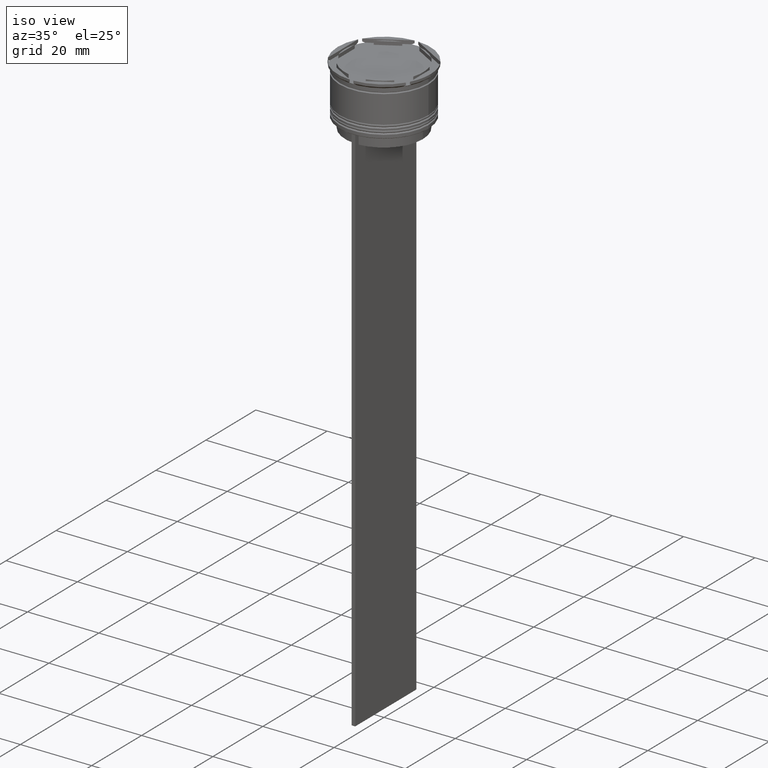
[diagram: clean part render]
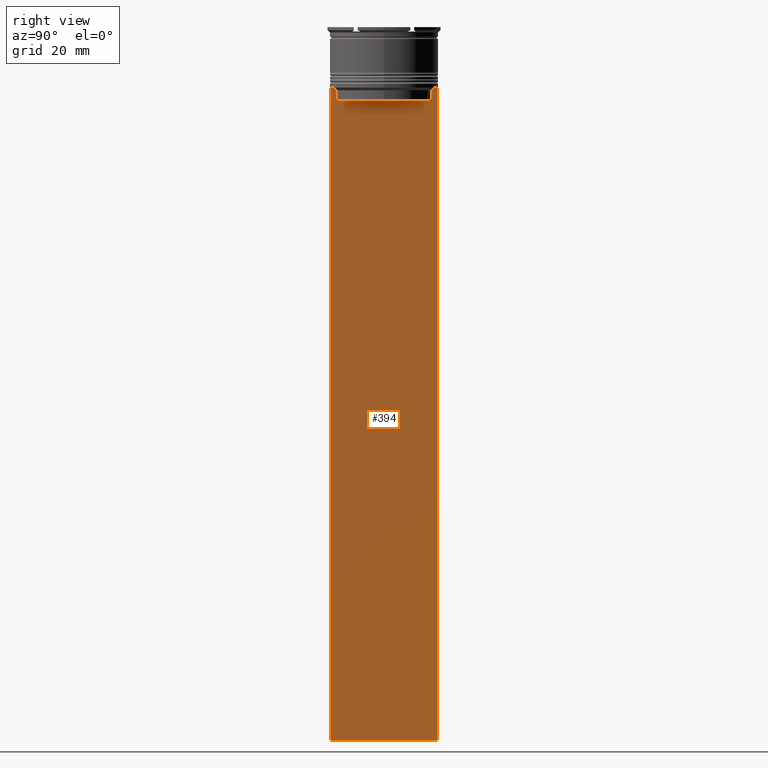
[diagram: tour spotlight — one face highlighted and labeled with its STEP entity id]
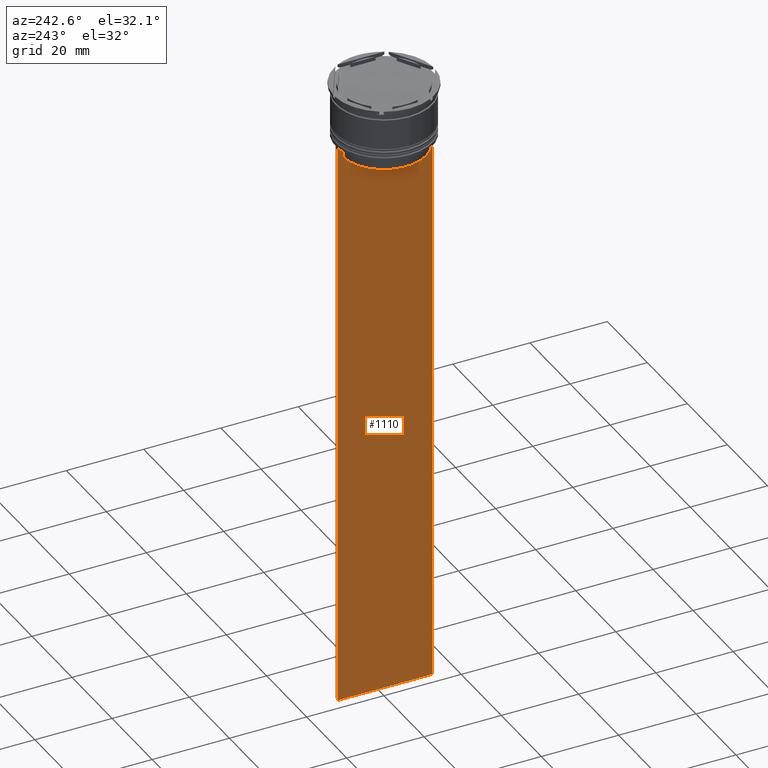
[diagram: tour spotlight — one face highlighted and labeled with its STEP entity id]
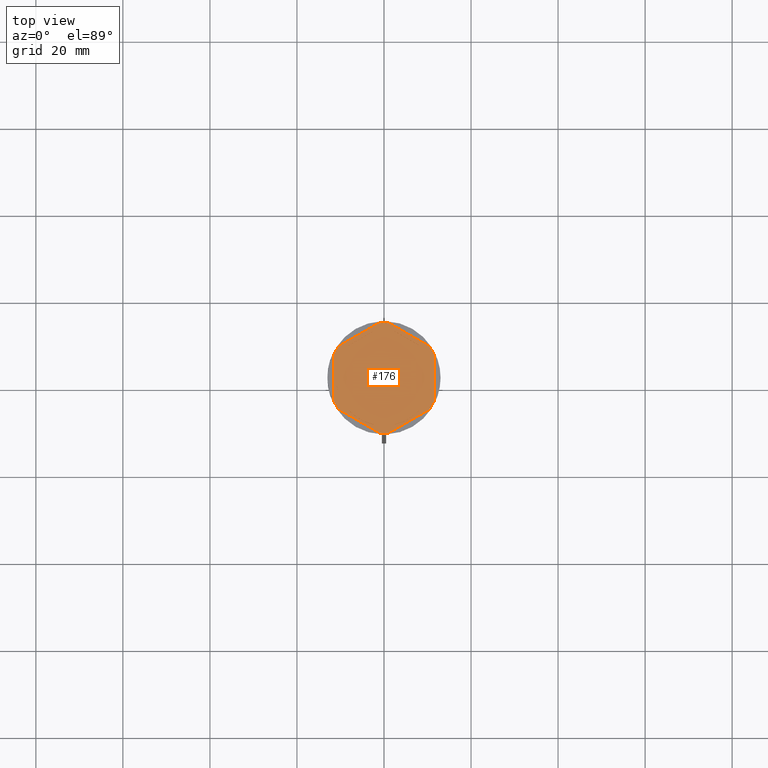
[diagram: tour spotlight — one face highlighted and labeled with its STEP entity id]
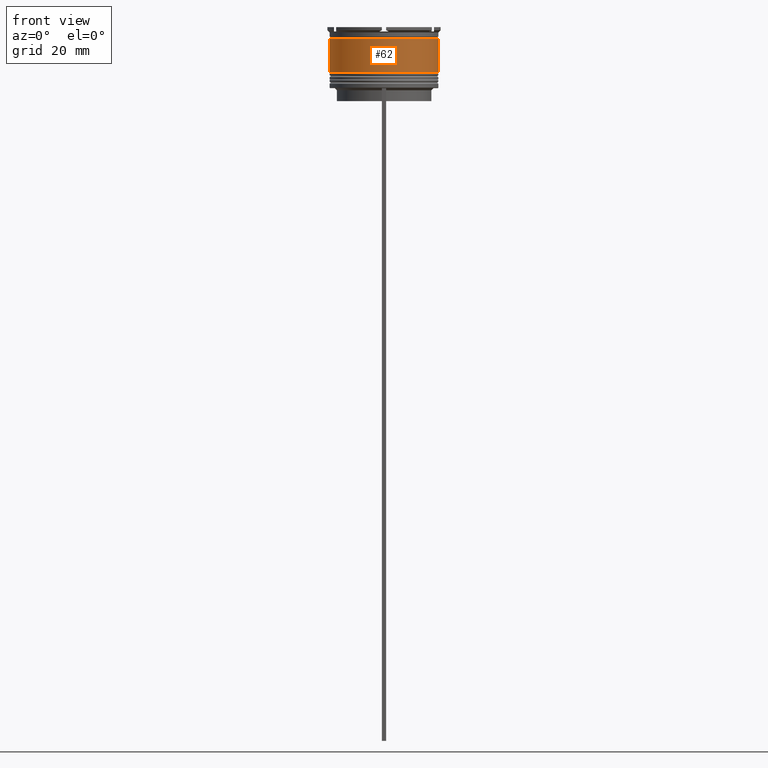
[diagram: tour spotlight — one face highlighted and labeled with its STEP entity id]
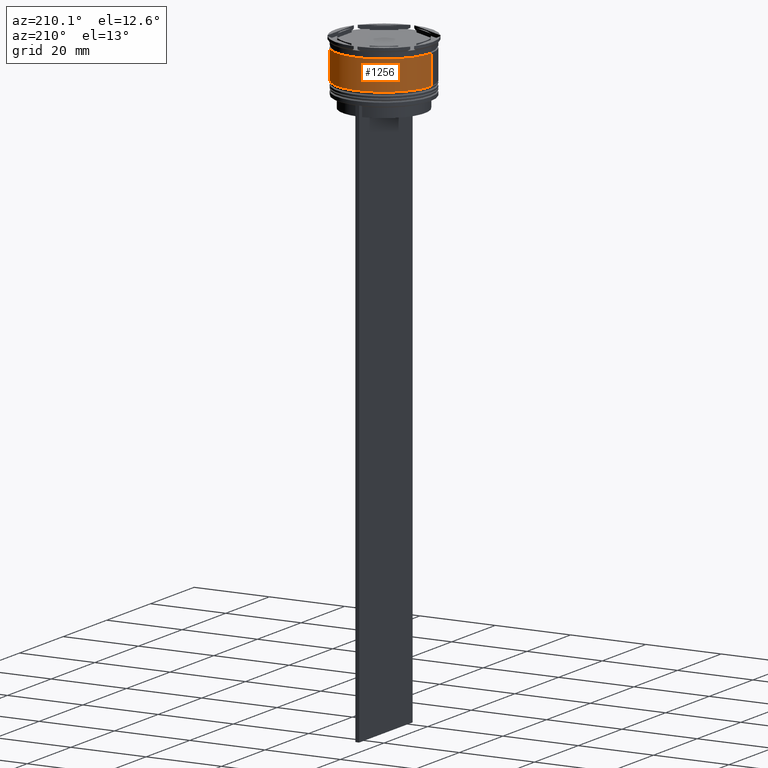
[diagram: tour spotlight — one face highlighted and labeled with its STEP entity id]
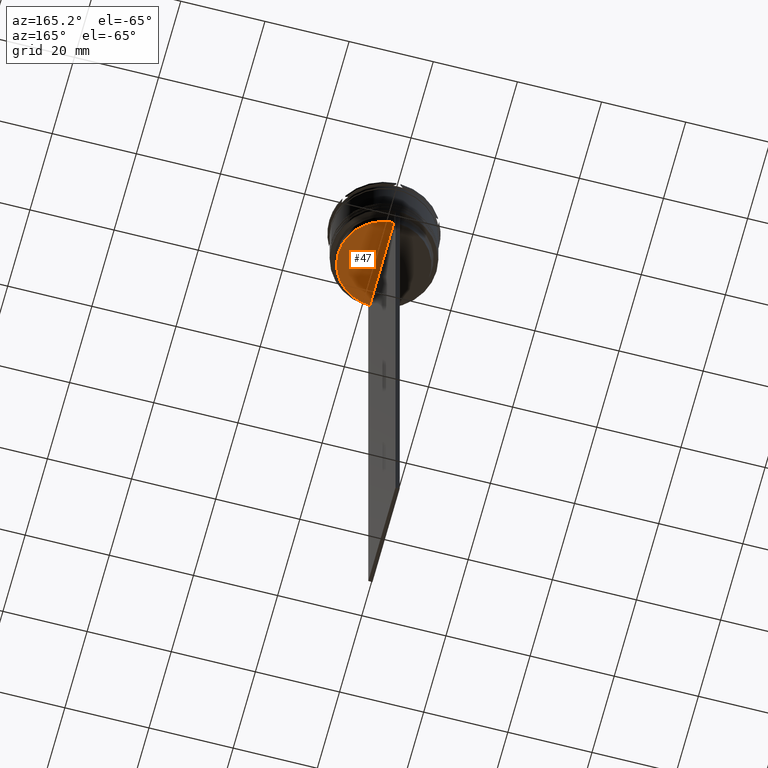
[diagram: tour spotlight — one face highlighted and labeled with its STEP entity id]
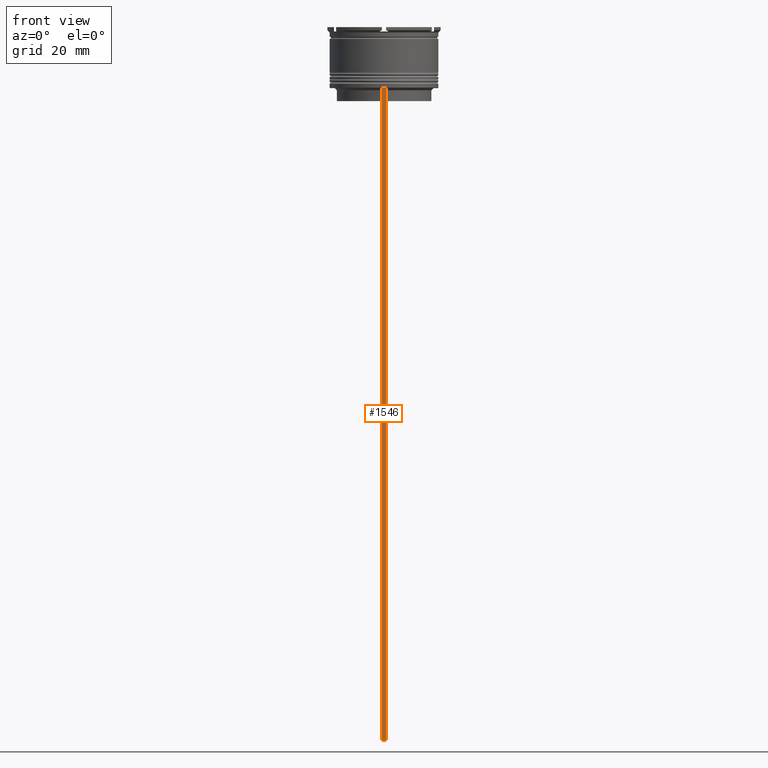
[diagram: tour spotlight — one face highlighted and labeled with its STEP entity id]
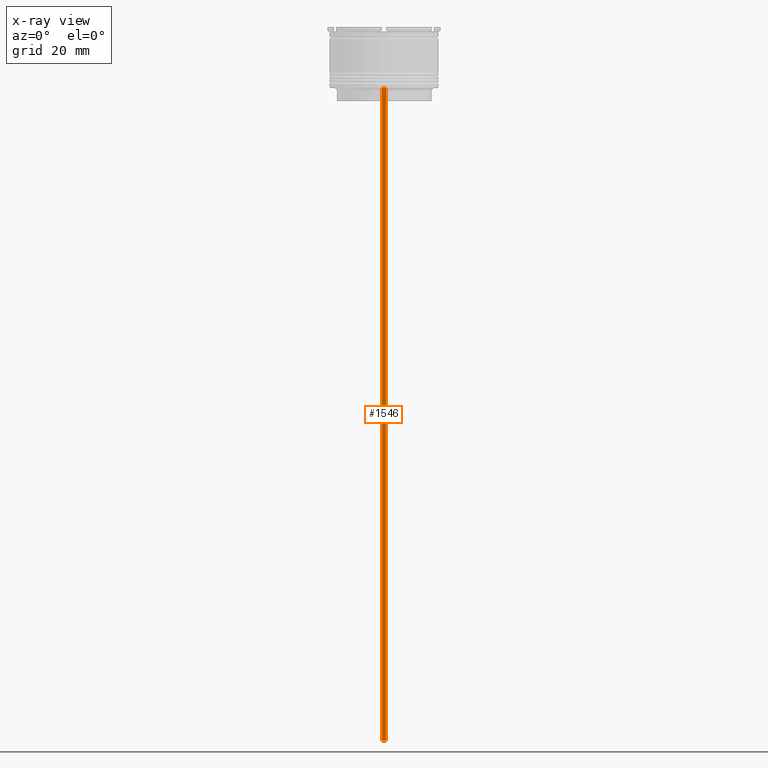
[diagram: x-ray of the same camera — body ghosted, this tour face saturated]
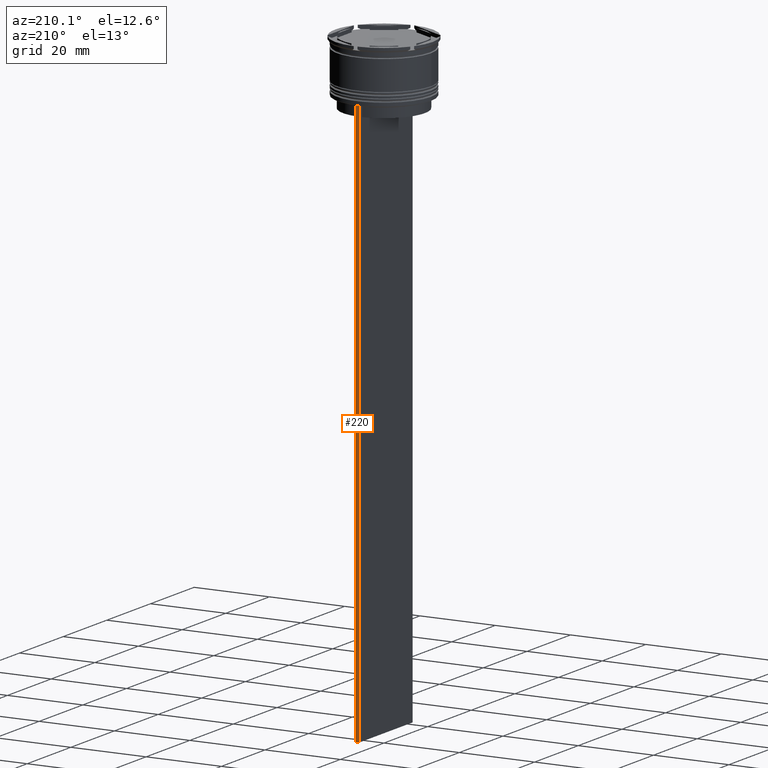
[diagram: tour spotlight — one face highlighted and labeled with its STEP entity id]
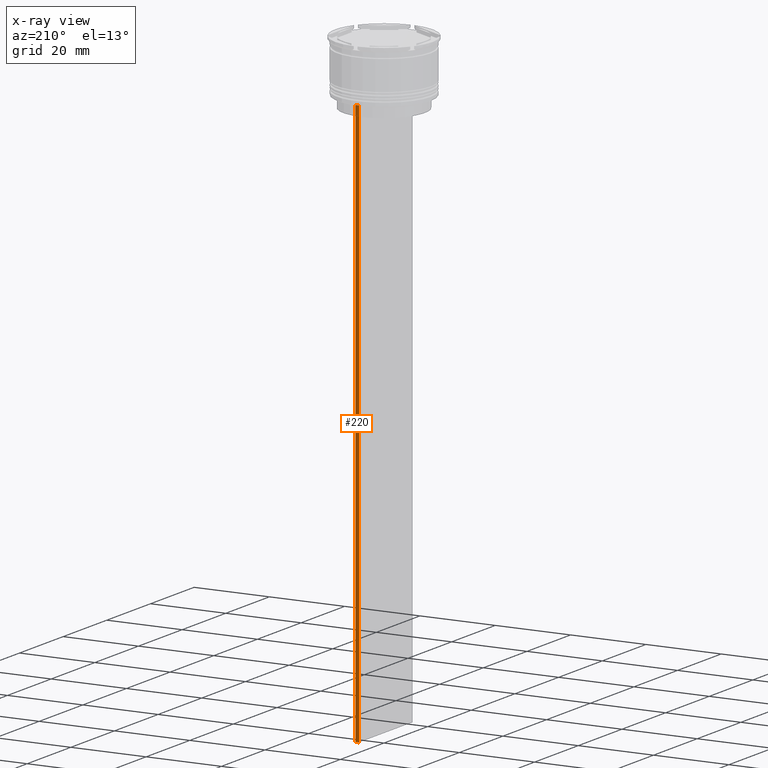
[diagram: x-ray of the same camera — body ghosted, this tour face saturated]
A machine part: a face-by-face anatomy tour. The part has 97 B-rep faces; the first image is the clean iso view, then the 8 largest visible faces are spotlighted one at a time (largest first), each with its STEP entity span.

Face 1 — right view, entity #394. In plain terms, the highlighted planar face has unit normal (-1, 0, 0).
Definition (entity closure, byte-faithful):
#19 = CARTESIAN_POINT ( 'NONE',  ( 0.5000000000000002220, -11.05536450423839057, -14.33333718996393280 ) ) ;
#27 = VECTOR ( 'NONE', #1442, 1000.000000000000000 ) ;
#40 = EDGE_CURVE ( 'NONE', #443, #1076, #49, .T. ) ;
#42 = DIRECTION ( 'NONE',  ( 0.000000000000000000, 0.000000000000000000, -1.000000000000000000 ) ) ;
#49 = LINE ( 'NONE', #2372, #1460 ) ;
#59 = CARTESIAN_POINT ( 'NONE',  ( 0.5000000000000002220, 10.88852607105296322, 0.000000000000000000 ) ) ;
#159 = DIRECTION ( 'NONE',  ( -0.000000000000000000, -0.000000000000000000, 1.000000000000000000 ) ) ;
#215 = ORIENTED_EDGE ( 'NONE', *, *, #1683, .T. ) ;
#218 = CARTESIAN_POINT ( 'NONE',  ( 0.5000000000000002220, -11.38902980942626719, -14.00000000000000178 ) ) ;
#242 = EDGE_CURVE ( 'NONE', #1511, #763, #671, .T. ) ;
#289 = LINE ( 'NONE', #2617, #1249 ) ;
#368 = CARTESIAN_POINT ( 'NONE',  ( 0.5000000000000002220, 11.05536450345590538, -14.33333719074559376 ) ) ;
#394 = ADVANCED_FACE ( 'NONE', ( #2367 ), #2464, .F. ) ;
#443 = VERTEX_POINT ( 'NONE', #2449 ) ;
#448 = B_SPLINE_CURVE_WITH_KNOTS ( 'NONE', 3,
 ( #2603, #19, #669, #1533 ),
 .UNSPECIFIED., .F., .F.,
 ( 4, 4 ),
 ( 0.05041323384703228633, 0.05112713601261608537 ),
 .UNSPECIFIED. ) ;
#479 = LINE ( 'NONE', #1337, #932 ) ;
#494 = EDGE_CURVE ( 'NONE', #1175, #1636, #1716, .T. ) ;
#504 = DIRECTION ( 'NONE',  ( 0.000000000000000000, -1.000000000000000000, 0.000000000000000000 ) ) ;
#553 = CARTESIAN_POINT ( 'NONE',  ( 0.5000000000000002220, 10.88852607105296144, -17.00000000000000000 ) ) ;
#586 = DIRECTION ( 'NONE',  ( 0.000000000000000000, -1.000000000000000000, 0.000000000000000000 ) ) ;
#669 = CARTESIAN_POINT ( 'NONE',  ( 0.5000000000000002220, -11.22219891450652973, -14.16667035398018903 ) ) ;
#671 = B_SPLINE_CURVE_WITH_KNOTS ( 'NONE', 3,
 ( #1448, #2732, #368, #2528 ),
 .UNSPECIFIED., .F., .F.,
 ( 4, 4 ),
 ( 0.01935560801904634073, 0.02006307108468586772 ),
 .UNSPECIFIED. ) ;
#725 = DIRECTION ( 'NONE',  ( 0.000000000000000000, 0.000000000000000000, -1.000000000000000000 ) ) ;
#763 = VERTEX_POINT ( 'NONE', #1816 ) ;
#821 = ORIENTED_EDGE ( 'NONE', *, *, #1182, .T. ) ;
#901 = CARTESIAN_POINT ( 'NONE',  ( 0.5000000000000002220, 12.24999999999999289, -14.00000000000000178 ) ) ;
#932 = VECTOR ( 'NONE', #2205, 1000.000000000000000 ) ;
#970 = ORIENTED_EDGE ( 'NONE', *, *, #1499, .F. ) ;
#993 = CARTESIAN_POINT ( 'NONE',  ( 0.5000000000000002220, -10.88852607105296144, -17.00000000000000000 ) ) ;
#1048 = EDGE_LOOP ( 'NONE', ( #215, #2560, #2418, #821, #1908, #1684, #2152, #2136, #2109, #970 ) ) ;
#1076 = VERTEX_POINT ( 'NONE', #2196 ) ;
#1083 = CARTESIAN_POINT ( 'NONE',  ( 0.5000000000000002220, -12.25000000000000711, 10.52039967047845792 ) ) ;
#1113 = VECTOR ( 'NONE', #725, 1000.000000000000000 ) ;
#1127 = CARTESIAN_POINT ( 'NONE',  ( 0.5000000000000002220, 12.24999999999999289, 10.52039967047845792 ) ) ;
#1139 = CARTESIAN_POINT ( 'NONE',  ( 0.5000000000000002220, 11.38902980942626719, -14.00000000000000178 ) ) ;
#1175 = VERTEX_POINT ( 'NONE', #993 ) ;
#1182 = EDGE_CURVE ( 'NONE', #1657, #1175, #1637, .T. ) ;
#1249 = VECTOR ( 'NONE', #504, 1000.000000000000000 ) ;
#1307 = DIRECTION ( 'NONE',  ( -1.000000000000000000, 0.000000000000000000, 0.000000000000000000 ) ) ;
#1337 = CARTESIAN_POINT ( 'NONE',  ( 0.5000000000000002220, -12.25000000000000711, -163.9999999999999716 ) ) ;
#1358 = VERTEX_POINT ( 'NONE', #218 ) ;
#1394 = VERTEX_POINT ( 'NONE', #901 ) ;
#1442 = DIRECTION ( 'NONE',  ( 0.000000000000000000, -1.000000000000000000, 0.000000000000000000 ) ) ;
#1445 = LINE ( 'NONE', #2279, #2111 ) ;
#1448 = CARTESIAN_POINT ( 'NONE',  ( 0.5000000000000002220, 11.38902980942626719, -14.00000000000000178 ) ) ;
#1460 = VECTOR ( 'NONE', #1507, 1000.000000000000000 ) ;
#1499 = EDGE_CURVE ( 'NONE', #1394, #1951, #2433, .T. ) ;
#1507 = DIRECTION ( 'NONE',  ( 0.000000000000000000, 0.000000000000000000, -1.000000000000000000 ) ) ;
#1511 = VERTEX_POINT ( 'NONE', #1139 ) ;
#1533 = CARTESIAN_POINT ( 'NONE',  ( 0.5000000000000002220, -11.38902980942626719, -14.00000000000000178 ) ) ;
#1636 = VERTEX_POINT ( 'NONE', #1677 ) ;
#1637 = LINE ( 'NONE', #2503, #27 ) ;
#1657 = VERTEX_POINT ( 'NONE', #553 ) ;
#1677 = CARTESIAN_POINT ( 'NONE',  ( 0.5000000000000002220, -10.88852607105296322, -14.50000000000000000 ) ) ;
#1683 = EDGE_CURVE ( 'NONE', #1394, #1511, #1445, .T. ) ;
#1684 = ORIENTED_EDGE ( 'NONE', *, *, #2734, .T. ) ;
#1716 = LINE ( 'NONE', #2578, #2280 ) ;
#1731 = AXIS2_PLACEMENT_3D ( 'NONE', #1083, #1307, #2238 ) ;
#1816 = CARTESIAN_POINT ( 'NONE',  ( 0.5000000000000002220, 10.88852607105296322, -14.50000000000000000 ) ) ;
#1908 = ORIENTED_EDGE ( 'NONE', *, *, #494, .T. ) ;
#1915 = EDGE_CURVE ( 'NONE', #1076, #1951, #479, .T. ) ;
#1951 = VERTEX_POINT ( 'NONE', #2692 ) ;
#2109 = ORIENTED_EDGE ( 'NONE', *, *, #1915, .T. ) ;
#2111 = VECTOR ( 'NONE', #586, 1000.000000000000000 ) ;
#2136 = ORIENTED_EDGE ( 'NONE', *, *, #40, .T. ) ;
#2152 = ORIENTED_EDGE ( 'NONE', *, *, #2308, .T. ) ;
#2196 = CARTESIAN_POINT ( 'NONE',  ( 0.5000000000000002220, -12.25000000000000711, -163.9999999999999716 ) ) ;
#2197 = VECTOR ( 'NONE', #42, 1000.000000000000000 ) ;
#2205 = DIRECTION ( 'NONE',  ( 0.000000000000000000, 1.000000000000000000, 0.000000000000000000 ) ) ;
#2238 = DIRECTION ( 'NONE',  ( 0.000000000000000000, 0.000000000000000000, 1.000000000000000000 ) ) ;
#2269 = EDGE_CURVE ( 'NONE', #763, #1657, #2440, .T. ) ;
#2279 = CARTESIAN_POINT ( 'NONE',  ( 0.5000000000000002220, -12.25000000000000711, -14.00000000000000178 ) ) ;
#2280 = VECTOR ( 'NONE', #159, 1000.000000000000000 ) ;
#2308 = EDGE_CURVE ( 'NONE', #1358, #443, #289, .T. ) ;
#2367 = FACE_OUTER_BOUND ( 'NONE', #1048, .T. ) ;
#2372 = CARTESIAN_POINT ( 'NONE',  ( 0.5000000000000002220, -12.25000000000000711, 10.52039967047845792 ) ) ;
#2418 = ORIENTED_EDGE ( 'NONE', *, *, #2269, .T. ) ;
#2433 = LINE ( 'NONE', #1127, #2197 ) ;
#2440 = LINE ( 'NONE', #59, #1113 ) ;
#2449 = CARTESIAN_POINT ( 'NONE',  ( 0.5000000000000002220, -12.25000000000000711, -14.00000000000000178 ) ) ;
#2464 = PLANE ( 'NONE',  #1731 ) ;
#2503 = CARTESIAN_POINT ( 'NONE',  ( 0.5000000000000002220, 10.90000000000000213, -17.00000000000000000 ) ) ;
#2528 = CARTESIAN_POINT ( 'NONE',  ( 0.5000000000000002220, 10.88852607105296322, -14.50000000000000000 ) ) ;
#2560 = ORIENTED_EDGE ( 'NONE', *, *, #242, .T. ) ;
#2578 = CARTESIAN_POINT ( 'NONE',  ( 0.5000000000000002220, -10.88852607105296322, 0.000000000000000000 ) ) ;
#2603 = CARTESIAN_POINT ( 'NONE',  ( 0.5000000000000002220, -10.88852607105296322, -14.50000000000000000 ) ) ;
#2617 = CARTESIAN_POINT ( 'NONE',  ( 0.5000000000000002220, -12.25000000000000711, -14.00000000000000178 ) ) ;
#2692 = CARTESIAN_POINT ( 'NONE',  ( 0.5000000000000002220, 12.24999999999999289, -163.9999999999999716 ) ) ;
#2732 = CARTESIAN_POINT ( 'NONE',  ( 0.5000000000000002220, 11.22219891375843304, -14.16667035472756808 ) ) ;
#2734 = EDGE_CURVE ( 'NONE', #1636, #1358, #448, .T. ) ;

Face 2 — auxiliary view, entity #1110. In plain terms, the highlighted planar face has unit normal (-1, 0, 0).
Definition (entity closure, byte-faithful):
#73 = CARTESIAN_POINT ( 'NONE',  ( -0.4999999999999997780, -11.05536450423839057, -14.33333718996393280 ) ) ;
#136 = DIRECTION ( 'NONE',  ( 0.000000000000000000, 0.000000000000000000, -1.000000000000000000 ) ) ;
#143 = CARTESIAN_POINT ( 'NONE',  ( -0.4999999999999997780, 12.24999999999999289, -14.00000000000000178 ) ) ;
#178 = FACE_OUTER_BOUND ( 'NONE', #824, .T. ) ;
#212 = VECTOR ( 'NONE', #1682, 1000.000000000000000 ) ;
#238 = LINE ( 'NONE', #2012, #2414 ) ;
#284 = VERTEX_POINT ( 'NONE', #1916 ) ;
#294 = VERTEX_POINT ( 'NONE', #575 ) ;
#304 = VECTOR ( 'NONE', #1253, 1000.000000000000000 ) ;
#359 = DIRECTION ( 'NONE',  ( -0.000000000000000000, -0.000000000000000000, 1.000000000000000000 ) ) ;
#362 = CARTESIAN_POINT ( 'NONE',  ( -0.4999999999999997780, -12.25000000000000711, -14.00000000000000178 ) ) ;
#387 = CARTESIAN_POINT ( 'NONE',  ( -0.4999999999999997780, -11.38902980942626719, -14.00000000000000178 ) ) ;
#401 = VECTOR ( 'NONE', #136, 1000.000000000000000 ) ;
#416 = EDGE_CURVE ( 'NONE', #1186, #497, #238, .T. ) ;
#472 = DIRECTION ( 'NONE',  ( 0.000000000000000000, -1.000000000000000000, 0.000000000000000000 ) ) ;
#497 = VERTEX_POINT ( 'NONE', #1638 ) ;
#507 = ORIENTED_EDGE ( 'NONE', *, *, #1081, .F. ) ;
#575 = CARTESIAN_POINT ( 'NONE',  ( -0.4999999999999997780, -12.25000000000000711, -163.9999999999999716 ) ) ;
#623 = CARTESIAN_POINT ( 'NONE',  ( -0.4999999999999997780, 11.38902980942626719, -14.00000000000000178 ) ) ;
#624 = ORIENTED_EDGE ( 'NONE', *, *, #870, .F. ) ;
#631 = VERTEX_POINT ( 'NONE', #2073 ) ;
#647 = CARTESIAN_POINT ( 'NONE',  ( -0.4999999999999997780, 10.88852607105296322, -14.50000000000000000 ) ) ;
#670 = EDGE_CURVE ( 'NONE', #2007, #1566, #991, .T. ) ;
#747 = VECTOR ( 'NONE', #2126, 1000.000000000000000 ) ;
#823 = LINE ( 'NONE', #1202, #212 ) ;
#824 = EDGE_LOOP ( 'NONE', ( #914, #989, #2664, #2714, #2572, #624, #1301, #1409, #507, #2640 ) ) ;
#853 = CARTESIAN_POINT ( 'NONE',  ( -0.4999999999999997780, 11.05536450345590538, -14.33333719074559376 ) ) ;
#864 = LINE ( 'NONE', #1911, #747 ) ;
#866 = LINE ( 'NONE', #1929, #2729 ) ;
#870 = EDGE_CURVE ( 'NONE', #1088, #1195, #866, .T. ) ;
#914 = ORIENTED_EDGE ( 'NONE', *, *, #1290, .F. ) ;
#989 = ORIENTED_EDGE ( 'NONE', *, *, #2122, .F. ) ;
#991 = LINE ( 'NONE', #1407, #1780 ) ;
#995 = EDGE_CURVE ( 'NONE', #1566, #1088, #2087, .T. ) ;
#1037 = CARTESIAN_POINT ( 'NONE',  ( -0.4999999999999997780, -12.25000000000000711, 10.52039967047845792 ) ) ;
#1081 = EDGE_CURVE ( 'NONE', #284, #2007, #1359, .T. ) ;
#1088 = VERTEX_POINT ( 'NONE', #387 ) ;
#1089 = CARTESIAN_POINT ( 'NONE',  ( -0.4999999999999997780, 10.88852607105296322, -14.50000000000000000 ) ) ;
#1110 = ADVANCED_FACE ( 'NONE', ( #178 ), #2275, .T. ) ;
#1128 = EDGE_CURVE ( 'NONE', #1195, #294, #823, .T. ) ;
#1186 = VERTEX_POINT ( 'NONE', #143 ) ;
#1195 = VERTEX_POINT ( 'NONE', #362 ) ;
#1202 = CARTESIAN_POINT ( 'NONE',  ( -0.4999999999999997780, -12.25000000000000711, 10.52039967047845792 ) ) ;
#1253 = DIRECTION ( 'NONE',  ( 0.000000000000000000, -1.000000000000000000, 0.000000000000000000 ) ) ;
#1262 = EDGE_CURVE ( 'NONE', #294, #497, #864, .T. ) ;
#1290 = EDGE_CURVE ( 'NONE', #631, #1365, #2304, .T. ) ;
#1301 = ORIENTED_EDGE ( 'NONE', *, *, #995, .F. ) ;
#1359 = LINE ( 'NONE', #2319, #1969 ) ;
#1365 = VERTEX_POINT ( 'NONE', #1089 ) ;
#1407 = CARTESIAN_POINT ( 'NONE',  ( -0.4999999999999997780, -10.88852607105296322, 0.000000000000000000 ) ) ;
#1409 = ORIENTED_EDGE ( 'NONE', *, *, #670, .F. ) ;
#1566 = VERTEX_POINT ( 'NONE', #2066 ) ;
#1638 = CARTESIAN_POINT ( 'NONE',  ( -0.4999999999999997780, 12.24999999999999289, -163.9999999999999716 ) ) ;
#1668 = DIRECTION ( 'NONE',  ( 0.000000000000000000, 0.000000000000000000, 1.000000000000000000 ) ) ;
#1682 = DIRECTION ( 'NONE',  ( 0.000000000000000000, 0.000000000000000000, -1.000000000000000000 ) ) ;
#1780 = VECTOR ( 'NONE', #359, 1000.000000000000000 ) ;
#1809 = DIRECTION ( 'NONE',  ( 0.000000000000000000, 0.000000000000000000, -1.000000000000000000 ) ) ;
#1828 = CARTESIAN_POINT ( 'NONE',  ( -0.4999999999999997780, -10.88852607105296144, -17.00000000000000000 ) ) ;
#1911 = CARTESIAN_POINT ( 'NONE',  ( -0.4999999999999997780, -12.25000000000000711, -163.9999999999999716 ) ) ;
#1916 = CARTESIAN_POINT ( 'NONE',  ( -0.4999999999999997780, 10.88852607105296144, -17.00000000000000000 ) ) ;
#1929 = CARTESIAN_POINT ( 'NONE',  ( -0.4999999999999997780, -12.25000000000000711, -14.00000000000000178 ) ) ;
#1969 = VECTOR ( 'NONE', #2743, 1000.000000000000000 ) ;
#2007 = VERTEX_POINT ( 'NONE', #1828 ) ;
#2009 = CARTESIAN_POINT ( 'NONE',  ( -0.4999999999999997780, -11.22219891450652973, -14.16667035398018903 ) ) ;
#2012 = CARTESIAN_POINT ( 'NONE',  ( -0.4999999999999997780, 12.24999999999999289, 10.52039967047845792 ) ) ;
#2043 = CARTESIAN_POINT ( 'NONE',  ( -0.4999999999999997780, 10.88852607105296322, 0.000000000000000000 ) ) ;
#2066 = CARTESIAN_POINT ( 'NONE',  ( -0.4999999999999997780, -10.88852607105296322, -14.50000000000000000 ) ) ;
#2073 = CARTESIAN_POINT ( 'NONE',  ( -0.4999999999999997780, 11.38902980942626719, -14.00000000000000178 ) ) ;
#2076 = LINE ( 'NONE', #2043, #401 ) ;
#2087 = B_SPLINE_CURVE_WITH_KNOTS ( 'NONE', 3,
 ( #2462, #73, #2009, #2448 ),
 .UNSPECIFIED., .F., .F.,
 ( 4, 4 ),
 ( 0.05041323384703224469, 0.05112713601261603680 ),
 .UNSPECIFIED. ) ;
#2112 = DIRECTION ( 'NONE',  ( -1.000000000000000000, 0.000000000000000000, 0.000000000000000000 ) ) ;
#2122 = EDGE_CURVE ( 'NONE', #1186, #631, #2329, .T. ) ;
#2126 = DIRECTION ( 'NONE',  ( 0.000000000000000000, 1.000000000000000000, 0.000000000000000000 ) ) ;
#2165 = CARTESIAN_POINT ( 'NONE',  ( -0.4999999999999997780, -12.25000000000000711, -14.00000000000000178 ) ) ;
#2275 = PLANE ( 'NONE',  #2463 ) ;
#2304 = B_SPLINE_CURVE_WITH_KNOTS ( 'NONE', 3,
 ( #623, #2336, #853, #647 ),
 .UNSPECIFIED., .F., .F.,
 ( 4, 4 ),
 ( 0.01935560801904634073, 0.02006307108468586772 ),
 .UNSPECIFIED. ) ;
#2319 = CARTESIAN_POINT ( 'NONE',  ( -0.4999999999999997780, 10.90000000000000213, -17.00000000000000000 ) ) ;
#2329 = LINE ( 'NONE', #2165, #304 ) ;
#2336 = CARTESIAN_POINT ( 'NONE',  ( -0.4999999999999997780, 11.22219891375843304, -14.16667035472756808 ) ) ;
#2414 = VECTOR ( 'NONE', #1809, 1000.000000000000000 ) ;
#2448 = CARTESIAN_POINT ( 'NONE',  ( -0.4999999999999997780, -11.38902980942626719, -14.00000000000000178 ) ) ;
#2462 = CARTESIAN_POINT ( 'NONE',  ( -0.4999999999999997780, -10.88852607105296322, -14.50000000000000000 ) ) ;
#2463 = AXIS2_PLACEMENT_3D ( 'NONE', #1037, #2112, #1668 ) ;
#2500 = EDGE_CURVE ( 'NONE', #1365, #284, #2076, .T. ) ;
#2572 = ORIENTED_EDGE ( 'NONE', *, *, #1128, .F. ) ;
#2640 = ORIENTED_EDGE ( 'NONE', *, *, #2500, .F. ) ;
#2664 = ORIENTED_EDGE ( 'NONE', *, *, #416, .T. ) ;
#2714 = ORIENTED_EDGE ( 'NONE', *, *, #1262, .F. ) ;
#2729 = VECTOR ( 'NONE', #472, 1000.000000000000000 ) ;
#2743 = DIRECTION ( 'NONE',  ( 0.000000000000000000, -1.000000000000000000, 0.000000000000000000 ) ) ;

Face 3 — top view, entity #176. In plain terms, the highlighted planar face has unit normal (0, 0, 1).
Definition (entity closure, byte-faithful):
#1 = EDGE_CURVE ( 'NONE', #2091, #1996, #2649, .T. ) ;
#3 = ORIENTED_EDGE ( 'NONE', *, *, #200, .F. ) ;
#9 = DIRECTION ( 'NONE',  ( 0.8660254037844387076, -0.4999999999999997780, 0.000000000000000000 ) ) ;
#31 = EDGE_CURVE ( 'NONE', #2229, #1531, #473, .T. ) ;
#37 = DIRECTION ( 'NONE',  ( 1.000000000000000000, 0.000000000000000000, 0.000000000000000000 ) ) ;
#55 = ORIENTED_EDGE ( 'NONE', *, *, #1, .T. ) ;
#61 = VECTOR ( 'NONE', #309, 999.9999999999998863 ) ;
#81 = DIRECTION ( 'NONE',  ( 0.000000000000000000, 0.000000000000000000, 1.000000000000000000 ) ) ;
#84 = ORIENTED_EDGE ( 'NONE', *, *, #2629, .T. ) ;
#90 = DIRECTION ( 'NONE',  ( 1.000000000000000000, 7.105427357601001859E-15, 0.000000000000000000 ) ) ;
#95 = EDGE_CURVE ( 'NONE', #316, #1568, #1011, .T. ) ;
#126 = VECTOR ( 'NONE', #9, 1000.000000000000227 ) ;
#142 = CARTESIAN_POINT ( 'NONE',  ( -10.49999999999999822, 6.062177826491068622, -1.000000000000000888 ) ) ;
#148 = DIRECTION ( 'NONE',  ( 0.000000000000000000, 0.000000000000000000, 1.000000000000000000 ) ) ;
#149 = EDGE_CURVE ( 'NONE', #1568, #316, #2452, .T. ) ;
#176 = ADVANCED_FACE ( 'NONE', ( #715, #1811, #2267, #1403, #1618, #1846, #1363 ), #1000, .T. ) ;
#192 = VERTEX_POINT ( 'NONE', #771 ) ;
#198 = EDGE_LOOP ( 'NONE', ( #3, #1778 ) ) ;
#200 = EDGE_CURVE ( 'NONE', #1240, #1923, #2774, .T. ) ;
#207 = LINE ( 'NONE', #1446, #126 ) ;
#230 = DIRECTION ( 'NONE',  ( 1.000000000000000000, 0.000000000000000000, 0.000000000000000000 ) ) ;
#231 = VERTEX_POINT ( 'NONE', #1263 ) ;
#253 = CIRCLE ( 'NONE', #344, 11.00000000000000000 ) ;
#254 = CARTESIAN_POINT ( 'NONE',  ( 0.000000000000000000, 0.000000000000000000, -1.000000000000000000 ) ) ;
#269 = CARTESIAN_POINT ( 'NONE',  ( -2.410545827099876082, -10.73262637081210435, -1.000000000000000888 ) ) ;
#280 = DIRECTION ( 'NONE',  ( -1.430775808321104180E-16, -1.000000000000000000, 0.000000000000000000 ) ) ;
#281 = VERTEX_POINT ( 'NONE', #1687 ) ;
#309 = DIRECTION ( 'NONE',  ( -0.8660254037844387076, -0.4999999999999999445, 0.000000000000000000 ) ) ;
#311 = ORIENTED_EDGE ( 'NONE', *, *, #339, .F. ) ;
#313 = CARTESIAN_POINT ( 'NONE',  ( 1.083095244168781557, 12.65373086058254160, -1.000000000000000000 ) ) ;
#316 = VERTEX_POINT ( 'NONE', #828 ) ;
#319 = LINE ( 'NONE', #332, #490 ) ;
#322 = CARTESIAN_POINT ( 'NONE',  ( 10.41690475583121156, 7.264853426459550789, -1.000000000000000000 ) ) ;
#323 = VERTEX_POINT ( 'NONE', #396 ) ;
#329 = DIRECTION ( 'NONE',  ( 1.000000000000000000, 0.000000000000000000, 0.000000000000000000 ) ) ;
#332 = CARTESIAN_POINT ( 'NONE',  ( -11.50000000000000000, 6.639528095680691244, -1.000000000000000000 ) ) ;
#339 = EDGE_CURVE ( 'NONE', #192, #1497, #1415, .T. ) ;
#344 = AXIS2_PLACEMENT_3D ( 'NONE', #1119, #2641, #1388 ) ;
#354 = VERTEX_POINT ( 'NONE', #2300 ) ;
#369 = CARTESIAN_POINT ( 'NONE',  ( 11.49999999999999822, -5.388877434122996135, -1.000000000000000000 ) ) ;
#391 = CARTESIAN_POINT ( 'NONE',  ( 11.50000000000000000, 6.639528095680698350, -1.000000000000000000 ) ) ;
#396 = CARTESIAN_POINT ( 'NONE',  ( -2.410545827099867200, 10.73262637081210613, -1.000000000000000888 ) ) ;
#402 = ORIENTED_EDGE ( 'NONE', *, *, #1960, .F. ) ;
#421 = CARTESIAN_POINT ( 'NONE',  ( 8.089454172900138573, 7.453907108661105063, -1.000000000000000888 ) ) ;
#437 = AXIS2_PLACEMENT_3D ( 'NONE', #2733, #759, #1013 ) ;
#462 = DIRECTION ( 'NONE',  ( 1.000000000000000000, 0.000000000000000000, 0.000000000000000000 ) ) ;
#473 = CIRCLE ( 'NONE', #783, 11.00000000000000000 ) ;
#484 = CIRCLE ( 'NONE', #706, 11.00000000000000000 ) ;
#490 = VECTOR ( 'NONE', #2281, 1000.000000000000000 ) ;
#544 = LINE ( 'NONE', #1604, #981 ) ;
#550 = CARTESIAN_POINT ( 'NONE',  ( -8.089454172900135021, 7.453907108661106840, -1.000000000000000888 ) ) ;
#556 = DIRECTION ( 'NONE',  ( 0.000000000000000000, 0.000000000000000000, 1.000000000000000000 ) ) ;
#557 = LINE ( 'NONE', #1193, #1158 ) ;
#564 = VERTEX_POINT ( 'NONE', #2700 ) ;
#590 = EDGE_LOOP ( 'NONE', ( #2222, #1941 ) ) ;
#650 = EDGE_CURVE ( 'NONE', #899, #1468, #1805, .T. ) ;
#666 = AXIS2_PLACEMENT_3D ( 'NONE', #1998, #1756, #462 ) ;
#678 = CARTESIAN_POINT ( 'NONE',  ( -10.41690475583121334, -7.264853426459548125, -1.000000000000000000 ) ) ;
#685 = DIRECTION ( 'NONE',  ( 0.8660254037844385966, 0.4999999999999999445, 0.000000000000000000 ) ) ;
#687 = ORIENTED_EDGE ( 'NONE', *, *, #149, .F. ) ;
#706 = AXIS2_PLACEMENT_3D ( 'NONE', #990, #1849, #2754 ) ;
#715 = FACE_BOUND ( 'NONE', #1190, .T. ) ;
#746 = CARTESIAN_POINT ( 'NONE',  ( 10.49999999999999467, -3.278719262151014835, -1.000000000000000888 ) ) ;
#759 = DIRECTION ( 'NONE',  ( -0.000000000000000000, -0.000000000000000000, -1.000000000000000000 ) ) ;
#768 = LINE ( 'NONE', #391, #1973 ) ;
#771 = CARTESIAN_POINT ( 'NONE',  ( -1.083095244168783333, 12.65373086058254160, -1.000000000000000000 ) ) ;
#779 = VERTEX_POINT ( 'NONE', #746 ) ;
#783 = AXIS2_PLACEMENT_3D ( 'NONE', #2608, #1109, #37 ) ;
#813 = LINE ( 'NONE', #2130, #1524 ) ;
#828 = CARTESIAN_POINT ( 'NONE',  ( 2.410545827099865868, -10.73262637081210791, -1.000000000000000888 ) ) ;
#841 = VECTOR ( 'NONE', #1779, 1000.000000000000000 ) ;
#881 = CIRCLE ( 'NONE', #2282, 12.69999999999999929 ) ;
#883 = CARTESIAN_POINT ( 'NONE',  ( 0.000000000000000000, 0.000000000000000000, -1.000000000000000000 ) ) ;
#899 = VERTEX_POINT ( 'NONE', #1501 ) ;
#915 = VERTEX_POINT ( 'NONE', #1945 ) ;
#916 = CARTESIAN_POINT ( 'NONE',  ( -1.734723475976807094E-15, 12.12435565298214080, -1.000000000000000888 ) ) ;
#934 = VERTEX_POINT ( 'NONE', #1596 ) ;
#954 = EDGE_CURVE ( 'NONE', #1161, #323, #1143, .T. ) ;
#971 = CIRCLE ( 'NONE', #2558, 12.69999999999999929 ) ;
#975 = EDGE_CURVE ( 'NONE', #323, #1161, #253, .T. ) ;
#981 = VECTOR ( 'NONE', #2268, 1000.000000000000000 ) ;
#990 = CARTESIAN_POINT ( 'NONE',  ( 0.000000000000000000, 0.000000000000000000, -1.000000000000000000 ) ) ;
#997 = DIRECTION ( 'NONE',  ( -0.8660254037844388186, 0.4999999999999997224, 0.000000000000000000 ) ) ;
#1000 = PLANE ( 'NONE',  #2456 ) ;
#1008 = DIRECTION ( 'NONE',  ( 1.000000000000000000, 0.000000000000000000, 0.000000000000000000 ) ) ;
#1011 = CIRCLE ( 'NONE', #2273, 11.00000000000000000 ) ;
#1013 = DIRECTION ( 'NONE',  ( 1.000000000000000000, 0.000000000000000000, 0.000000000000000000 ) ) ;
#1023 = ORIENTED_EDGE ( 'NONE', *, *, #95, .F. ) ;
#1046 = EDGE_CURVE ( 'NONE', #1387, #231, #971, .T. ) ;
#1067 = DIRECTION ( 'NONE',  ( 1.306360520641008153E-16, 1.000000000000000000, 0.000000000000000000 ) ) ;
#1070 = CARTESIAN_POINT ( 'NONE',  ( 0.000000000000000000, 0.000000000000000000, -1.000000000000000000 ) ) ;
#1095 = EDGE_CURVE ( 'NONE', #354, #281, #881, .T. ) ;
#1109 = DIRECTION ( 'NONE',  ( 0.000000000000000000, 0.000000000000000000, 1.000000000000000000 ) ) ;
#1119 = CARTESIAN_POINT ( 'NONE',  ( 0.000000000000000000, 0.000000000000000000, -1.000000000000000000 ) ) ;
#1126 = ORIENTED_EDGE ( 'NONE', *, *, #2032, .T. ) ;
#1143 = LINE ( 'NONE', #916, #841 ) ;
#1158 = VECTOR ( 'NONE', #1449, 1000.000000000000114 ) ;
#1161 = VERTEX_POINT ( 'NONE', #550 ) ;
#1162 = DIRECTION ( 'NONE',  ( -0.000000000000000000, -0.000000000000000000, -1.000000000000000000 ) ) ;
#1167 = DIRECTION ( 'NONE',  ( -0.000000000000000000, -0.000000000000000000, -1.000000000000000000 ) ) ;
#1184 = CARTESIAN_POINT ( 'NONE',  ( 2.410545827099861871, 10.73262637081210791, -1.000000000000000888 ) ) ;
#1190 = EDGE_LOOP ( 'NONE', ( #1895, #2460 ) ) ;
#1193 = CARTESIAN_POINT ( 'NONE',  ( 0.000000000000000000, 13.27905619136138959, -1.000000000000000000 ) ) ;
#1208 = CARTESIAN_POINT ( 'NONE',  ( 0.000000000000000000, 0.000000000000000000, -1.000000000000000000 ) ) ;
#1240 = VERTEX_POINT ( 'NONE', #2548 ) ;
#1246 = ORIENTED_EDGE ( 'NONE', *, *, #1791, .F. ) ;
#1263 = CARTESIAN_POINT ( 'NONE',  ( -11.50000000000000000, -5.388877434122992582, -1.000000000000000000 ) ) ;
#1292 = CIRCLE ( 'NONE', #437, 12.69999999999999929 ) ;
#1356 = CARTESIAN_POINT ( 'NONE',  ( -10.49999999999999822, 3.278719262151000624, -1.000000000000000888 ) ) ;
#1363 = FACE_OUTER_BOUND ( 'NONE', #2154, .T. ) ;
#1387 = VERTEX_POINT ( 'NONE', #678 ) ;
#1388 = DIRECTION ( 'NONE',  ( 1.000000000000000000, 0.000000000000000000, 0.000000000000000000 ) ) ;
#1403 = FACE_BOUND ( 'NONE', #198, .T. ) ;
#1415 = CIRCLE ( 'NONE', #2232, 12.69999999999999929 ) ;
#1428 = CARTESIAN_POINT ( 'NONE',  ( 0.000000000000000000, 0.000000000000000000, -1.000000000000000000 ) ) ;
#1436 = DIRECTION ( 'NONE',  ( 1.000000000000000000, 1.243449787580175325E-14, 0.000000000000000000 ) ) ;
#1446 = CARTESIAN_POINT ( 'NONE',  ( -11.50000000000000000, -6.639528095680696573, -1.000000000000000000 ) ) ;
#1449 = DIRECTION ( 'NONE',  ( -0.8660254037844385966, -0.5000000000000001110, 0.000000000000000000 ) ) ;
#1468 = VERTEX_POINT ( 'NONE', #1356 ) ;
#1497 = VERTEX_POINT ( 'NONE', #313 ) ;
#1501 = CARTESIAN_POINT ( 'NONE',  ( -10.49999999999999822, -3.278719262151000624, -1.000000000000000888 ) ) ;
#1504 = CARTESIAN_POINT ( 'NONE',  ( -11.00000000000000000, 0.000000000000000000, -1.000000000000000000 ) ) ;
#1524 = VECTOR ( 'NONE', #1067, 1000.000000000000000 ) ;
#1531 = VERTEX_POINT ( 'NONE', #1184 ) ;
#1564 = DIRECTION ( 'NONE',  ( 0.000000000000000000, 0.000000000000000000, 1.000000000000000000 ) ) ;
#1568 = VERTEX_POINT ( 'NONE', #2722 ) ;
#1575 = DIRECTION ( 'NONE',  ( 1.000000000000000000, 0.000000000000000000, -0.000000000000000000 ) ) ;
#1592 = DIRECTION ( 'NONE',  ( 0.000000000000000000, 1.000000000000000000, 0.000000000000000000 ) ) ;
#1596 = CARTESIAN_POINT ( 'NONE',  ( 10.49999999999999467, 3.278719262151012170, -1.000000000000000888 ) ) ;
#1604 = CARTESIAN_POINT ( 'NONE',  ( -10.49999999999999822, -6.062177826491068622, -1.000000000000000888 ) ) ;
#1618 = FACE_BOUND ( 'NONE', #2419, .T. ) ;
#1633 = EDGE_CURVE ( 'NONE', #779, #934, #484, .T. ) ;
#1654 = AXIS2_PLACEMENT_3D ( 'NONE', #2085, #148, #1008 ) ;
#1670 = EDGE_CURVE ( 'NONE', #1985, #1497, #768, .T. ) ;
#1680 = ORIENTED_EDGE ( 'NONE', *, *, #954, .F. ) ;
#1687 = CARTESIAN_POINT ( 'NONE',  ( -10.41690475583121689, 7.264853426459546348, -1.000000000000000000 ) ) ;
#1710 = ORIENTED_EDGE ( 'NONE', *, *, #975, .F. ) ;
#1734 = ORIENTED_EDGE ( 'NONE', *, *, #2618, .T. ) ;
#1756 = DIRECTION ( 'NONE',  ( 0.000000000000000000, 0.000000000000000000, 1.000000000000000000 ) ) ;
#1759 = CARTESIAN_POINT ( 'NONE',  ( 5.612359739892467248E-18, -13.27905619136138959, -1.000000000000000000 ) ) ;
#1760 = CARTESIAN_POINT ( 'NONE',  ( 10.49999999999999289, -6.062177826491073063, -1.000000000000000888 ) ) ;
#1773 = ORIENTED_EDGE ( 'NONE', *, *, #2467, .T. ) ;
#1778 = ORIENTED_EDGE ( 'NONE', *, *, #2010, .F. ) ;
#1779 = DIRECTION ( 'NONE',  ( 0.8660254037844385966, 0.5000000000000001110, -0.000000000000000000 ) ) ;
#1791 = EDGE_CURVE ( 'NONE', #2180, #899, #2644, .T. ) ;
#1805 = LINE ( 'NONE', #142, #2191 ) ;
#1811 = FACE_BOUND ( 'NONE', #590, .T. ) ;
#1845 = EDGE_CURVE ( 'NONE', #934, #779, #1990, .T. ) ;
#1846 = FACE_BOUND ( 'NONE', #2538, .T. ) ;
#1849 = DIRECTION ( 'NONE',  ( 0.000000000000000000, 0.000000000000000000, 1.000000000000000000 ) ) ;
#1857 = CARTESIAN_POINT ( 'NONE',  ( 0.000000000000000000, 0.000000000000000000, -1.000000000000000000 ) ) ;
#1895 = ORIENTED_EDGE ( 'NONE', *, *, #31, .F. ) ;
#1898 = DIRECTION ( 'NONE',  ( -0.000000000000000000, -0.000000000000000000, -1.000000000000000000 ) ) ;
#1904 = DIRECTION ( 'NONE',  ( -0.000000000000000000, -0.000000000000000000, -1.000000000000000000 ) ) ;
#1923 = VERTEX_POINT ( 'NONE', #269 ) ;
#1941 = ORIENTED_EDGE ( 'NONE', *, *, #1845, .F. ) ;
#1945 = CARTESIAN_POINT ( 'NONE',  ( 11.49999999999999822, 5.388877434122992582, -1.000000000000000000 ) ) ;
#1960 = EDGE_CURVE ( 'NONE', #2074, #1996, #1292, .T. ) ;
#1972 = LINE ( 'NONE', #2382, #2383 ) ;
#1973 = VECTOR ( 'NONE', #997, 1000.000000000000000 ) ;
#1975 = DIRECTION ( 'NONE',  ( 1.000000000000000000, -1.776356839400250465E-14, 0.000000000000000000 ) ) ;
#1985 = VERTEX_POINT ( 'NONE', #322 ) ;
#1990 = LINE ( 'NONE', #1760, #2335 ) ;
#1996 = VERTEX_POINT ( 'NONE', #2495 ) ;
#1998 = CARTESIAN_POINT ( 'NONE',  ( 0.000000000000000000, 0.000000000000000000, -1.000000000000000000 ) ) ;
#1999 = DIRECTION ( 'NONE',  ( -0.000000000000000000, -0.000000000000000000, -1.000000000000000000 ) ) ;
#2010 = EDGE_CURVE ( 'NONE', #1923, #1240, #544, .T. ) ;
#2031 = DIRECTION ( 'NONE',  ( 1.000000000000000000, 0.000000000000000000, 0.000000000000000000 ) ) ;
#2032 = EDGE_CURVE ( 'NONE', #192, #281, #557, .T. ) ;
#2033 = DIRECTION ( 'NONE',  ( 1.000000000000000000, 0.000000000000000000, 0.000000000000000000 ) ) ;
#2074 = VERTEX_POINT ( 'NONE', #369 ) ;
#2085 = CARTESIAN_POINT ( 'NONE',  ( 0.000000000000000000, 0.000000000000000000, -1.000000000000000000 ) ) ;
#2091 = VERTEX_POINT ( 'NONE', #2529 ) ;
#2115 = CIRCLE ( 'NONE', #2472, 12.69999999999999929 ) ;
#2130 = CARTESIAN_POINT ( 'NONE',  ( 11.49999999999999822, -6.639528095680694797, -1.000000000000000000 ) ) ;
#2154 = EDGE_LOOP ( 'NONE', ( #1734, #2667, #2380, #311, #1126, #2302, #1773, #2360, #84, #2584, #55, #402 ) ) ;
#2180 = VERTEX_POINT ( 'NONE', #1504 ) ;
#2191 = VECTOR ( 'NONE', #1592, 1000.000000000000000 ) ;
#2209 = ORIENTED_EDGE ( 'NONE', *, *, #2744, .F. ) ;
#2212 = CARTESIAN_POINT ( 'NONE',  ( 0.000000000000000000, 0.000000000000000000, -1.000000000000000000 ) ) ;
#2222 = ORIENTED_EDGE ( 'NONE', *, *, #1633, .F. ) ;
#2229 = VERTEX_POINT ( 'NONE', #421 ) ;
#2232 = AXIS2_PLACEMENT_3D ( 'NONE', #1070, #1904, #1436 ) ;
#2242 = EDGE_CURVE ( 'NONE', #1985, #915, #2379, .T. ) ;
#2257 = ORIENTED_EDGE ( 'NONE', *, *, #650, .F. ) ;
#2267 = FACE_BOUND ( 'NONE', #2582, .T. ) ;
#2268 = DIRECTION ( 'NONE',  ( -0.8660254037844384856, 0.5000000000000002220, 0.000000000000000000 ) ) ;
#2273 = AXIS2_PLACEMENT_3D ( 'NONE', #254, #1564, #230 ) ;
#2281 = DIRECTION ( 'NONE',  ( 0.000000000000000000, -1.000000000000000000, 0.000000000000000000 ) ) ;
#2282 = AXIS2_PLACEMENT_3D ( 'NONE', #1428, #1898, #329 ) ;
#2284 = CARTESIAN_POINT ( 'NONE',  ( 0.000000000000000000, 0.000000000000000000, -1.000000000000000000 ) ) ;
#2300 = CARTESIAN_POINT ( 'NONE',  ( -11.50000000000000000, 5.388877434122992582, -1.000000000000000000 ) ) ;
#2302 = ORIENTED_EDGE ( 'NONE', *, *, #1095, .F. ) ;
#2321 = VECTOR ( 'NONE', #685, 1000.000000000000114 ) ;
#2335 = VECTOR ( 'NONE', #280, 1000.000000000000000 ) ;
#2360 = ORIENTED_EDGE ( 'NONE', *, *, #1046, .F. ) ;
#2366 = AXIS2_PLACEMENT_3D ( 'NONE', #1208, #556, #2033 ) ;
#2379 = CIRCLE ( 'NONE', #2520, 12.69999999999999929 ) ;
#2380 = ORIENTED_EDGE ( 'NONE', *, *, #1670, .T. ) ;
#2382 = CARTESIAN_POINT ( 'NONE',  ( 10.49999999999999467, 6.062177826491072175, -1.000000000000000888 ) ) ;
#2383 = VECTOR ( 'NONE', #2616, 999.9999999999998863 ) ;
#2388 = CIRCLE ( 'NONE', #666, 11.00000000000000000 ) ;
#2419 = EDGE_LOOP ( 'NONE', ( #2209, #2257, #1246 ) ) ;
#2434 = EDGE_CURVE ( 'NONE', #2091, #564, #2115, .T. ) ;
#2452 = LINE ( 'NONE', #2661, #61 ) ;
#2456 = AXIS2_PLACEMENT_3D ( 'NONE', #2284, #81, #1575 ) ;
#2460 = ORIENTED_EDGE ( 'NONE', *, *, #2701, .F. ) ;
#2467 = EDGE_CURVE ( 'NONE', #354, #231, #319, .T. ) ;
#2472 = AXIS2_PLACEMENT_3D ( 'NONE', #1857, #1167, #2031 ) ;
#2495 = CARTESIAN_POINT ( 'NONE',  ( 10.41690475583121867, -7.264853426459537467, -1.000000000000000000 ) ) ;
#2520 = AXIS2_PLACEMENT_3D ( 'NONE', #883, #1999, #1975 ) ;
#2529 = CARTESIAN_POINT ( 'NONE',  ( 1.083095244168774673, -12.65373086058253982, -1.000000000000000000 ) ) ;
#2538 = EDGE_LOOP ( 'NONE', ( #1710, #1680 ) ) ;
#2548 = CARTESIAN_POINT ( 'NONE',  ( -8.089454172900133244, -7.453907108661111280, -1.000000000000000888 ) ) ;
#2558 = AXIS2_PLACEMENT_3D ( 'NONE', #2212, #1162, #90 ) ;
#2582 = EDGE_LOOP ( 'NONE', ( #1023, #687 ) ) ;
#2584 = ORIENTED_EDGE ( 'NONE', *, *, #2434, .F. ) ;
#2608 = CARTESIAN_POINT ( 'NONE',  ( 0.000000000000000000, 0.000000000000000000, -1.000000000000000000 ) ) ;
#2616 = DIRECTION ( 'NONE',  ( 0.8660254037844387076, -0.4999999999999999445, 0.000000000000000000 ) ) ;
#2618 = EDGE_CURVE ( 'NONE', #2074, #915, #813, .T. ) ;
#2629 = EDGE_CURVE ( 'NONE', #1387, #564, #207, .T. ) ;
#2641 = DIRECTION ( 'NONE',  ( 0.000000000000000000, 0.000000000000000000, 1.000000000000000000 ) ) ;
#2644 = CIRCLE ( 'NONE', #1654, 11.00000000000000000 ) ;
#2649 = LINE ( 'NONE', #1759, #2321 ) ;
#2661 = CARTESIAN_POINT ( 'NONE',  ( -2.602085213965210642E-15, -12.12435565298214080, -1.000000000000000888 ) ) ;
#2667 = ORIENTED_EDGE ( 'NONE', *, *, #2242, .F. ) ;
#2700 = CARTESIAN_POINT ( 'NONE',  ( -1.083095244168779780, -12.65373086058253982, -1.000000000000000000 ) ) ;
#2701 = EDGE_CURVE ( 'NONE', #1531, #2229, #1972, .T. ) ;
#2722 = CARTESIAN_POINT ( 'NONE',  ( 8.089454172900135021, -7.453907108661109504, -1.000000000000000888 ) ) ;
#2733 = CARTESIAN_POINT ( 'NONE',  ( 0.000000000000000000, 0.000000000000000000, -1.000000000000000000 ) ) ;
#2744 = EDGE_CURVE ( 'NONE', #1468, #2180, #2388, .T. ) ;
#2754 = DIRECTION ( 'NONE',  ( 1.000000000000000000, 0.000000000000000000, 0.000000000000000000 ) ) ;
#2774 = CIRCLE ( 'NONE', #2366, 11.00000000000000000 ) ;

Face 4 — front view, entity #62. In plain terms, the highlighted cylindrical surface (partial cylindrical patch) has radius 12.5 mm, axis along (-0, -0, 1).
Definition (entity closure, byte-faithful):
#13 = FACE_OUTER_BOUND ( 'NONE', #709, .T. ) ;
#62 = ADVANCED_FACE ( 'NONE', ( #13 ), #1336, .T. ) ;
#252 = VECTOR ( 'NONE', #1936, 1000.000000000000000 ) ;
#315 = VERTEX_POINT ( 'NONE', #2570 ) ;
#318 = LINE ( 'NONE', #2606, #252 ) ;
#442 = EDGE_CURVE ( 'NONE', #2236, #1750, #318, .T. ) ;
#466 = DIRECTION ( 'NONE',  ( -0.000000000000000000, -0.000000000000000000, 1.000000000000000000 ) ) ;
#531 = CARTESIAN_POINT ( 'NONE',  ( -12.50000000000000000, 1.530808498934191521E-15, 0.000000000000000000 ) ) ;
#674 = DIRECTION ( 'NONE',  ( 1.000000000000000000, 0.000000000000000000, 0.000000000000000000 ) ) ;
#709 = EDGE_LOOP ( 'NONE', ( #1612, #1254, #996, #1345 ) ) ;
#795 = DIRECTION ( 'NONE',  ( 1.000000000000000000, 0.000000000000000000, 0.000000000000000000 ) ) ;
#798 = AXIS2_PLACEMENT_3D ( 'NONE', #1393, #1619, #2674 ) ;
#825 = CARTESIAN_POINT ( 'NONE',  ( 12.49999999999999822, 0.000000000000000000, -2.699999999999999289 ) ) ;
#964 = AXIS2_PLACEMENT_3D ( 'NONE', #2203, #466, #674 ) ;
#996 = ORIENTED_EDGE ( 'NONE', *, *, #442, .T. ) ;
#1245 = AXIS2_PLACEMENT_3D ( 'NONE', #1867, #2097, #795 ) ;
#1254 = ORIENTED_EDGE ( 'NONE', *, *, #1802, .T. ) ;
#1336 = CYLINDRICAL_SURFACE ( 'NONE', #964, 12.50000000000000000 ) ;
#1345 = ORIENTED_EDGE ( 'NONE', *, *, #1977, .F. ) ;
#1384 = CIRCLE ( 'NONE', #798, 12.49999999999999822 ) ;
#1393 = CARTESIAN_POINT ( 'NONE',  ( 0.000000000000000000, 0.000000000000000000, -2.699999999999999289 ) ) ;
#1404 = LINE ( 'NONE', #531, #2158 ) ;
#1555 = VERTEX_POINT ( 'NONE', #2080 ) ;
#1612 = ORIENTED_EDGE ( 'NONE', *, *, #1952, .F. ) ;
#1619 = DIRECTION ( 'NONE',  ( -0.000000000000000000, -0.000000000000000000, 1.000000000000000000 ) ) ;
#1645 = DIRECTION ( 'NONE',  ( -0.000000000000000000, -0.000000000000000000, 1.000000000000000000 ) ) ;
#1750 = VERTEX_POINT ( 'NONE', #825 ) ;
#1802 = EDGE_CURVE ( 'NONE', #315, #2236, #2468, .T. ) ;
#1867 = CARTESIAN_POINT ( 'NONE',  ( 0.000000000000000000, 0.000000000000000000, -10.50000000000000178 ) ) ;
#1936 = DIRECTION ( 'NONE',  ( -0.000000000000000000, -0.000000000000000000, 1.000000000000000000 ) ) ;
#1952 = EDGE_CURVE ( 'NONE', #315, #1555, #1404, .T. ) ;
#1977 = EDGE_CURVE ( 'NONE', #1555, #1750, #1384, .T. ) ;
#2080 = CARTESIAN_POINT ( 'NONE',  ( -12.49999999999999822, 1.530808498934191324E-15, -2.699999999999999289 ) ) ;
#2097 = DIRECTION ( 'NONE',  ( -0.000000000000000000, -0.000000000000000000, 1.000000000000000000 ) ) ;
#2158 = VECTOR ( 'NONE', #1645, 1000.000000000000000 ) ;
#2203 = CARTESIAN_POINT ( 'NONE',  ( 0.000000000000000000, 0.000000000000000000, 0.000000000000000000 ) ) ;
#2236 = VERTEX_POINT ( 'NONE', #2630 ) ;
#2468 = CIRCLE ( 'NONE', #1245, 12.50000000000000178 ) ;
#2570 = CARTESIAN_POINT ( 'NONE',  ( -12.50000000000000355, 1.530808498934191916E-15, -10.50000000000000178 ) ) ;
#2606 = CARTESIAN_POINT ( 'NONE',  ( 12.50000000000000000, 0.000000000000000000, 0.000000000000000000 ) ) ;
#2630 = CARTESIAN_POINT ( 'NONE',  ( 12.50000000000000178, 0.000000000000000000, -10.50000000000000178 ) ) ;
#2674 = DIRECTION ( 'NONE',  ( 1.000000000000000000, 0.000000000000000000, 0.000000000000000000 ) ) ;

Face 5 — auxiliary view, entity #1256. In plain terms, the highlighted cylindrical surface (partial cylindrical patch) has radius 12.5 mm, axis along (-0, -0, 1).
Definition (entity closure, byte-faithful):
#85 = EDGE_CURVE ( 'NONE', #2236, #315, #2230, .T. ) ;
#191 = DIRECTION ( 'NONE',  ( -0.000000000000000000, -0.000000000000000000, 1.000000000000000000 ) ) ;
#252 = VECTOR ( 'NONE', #1936, 1000.000000000000000 ) ;
#315 = VERTEX_POINT ( 'NONE', #2570 ) ;
#318 = LINE ( 'NONE', #2606, #252 ) ;
#442 = EDGE_CURVE ( 'NONE', #2236, #1750, #318, .T. ) ;
#531 = CARTESIAN_POINT ( 'NONE',  ( -12.50000000000000000, 1.530808498934191521E-15, 0.000000000000000000 ) ) ;
#825 = CARTESIAN_POINT ( 'NONE',  ( 12.49999999999999822, 0.000000000000000000, -2.699999999999999289 ) ) ;
#913 = AXIS2_PLACEMENT_3D ( 'NONE', #1989, #2187, #1748 ) ;
#1010 = EDGE_CURVE ( 'NONE', #1750, #1555, #1874, .T. ) ;
#1020 = AXIS2_PLACEMENT_3D ( 'NONE', #1695, #191, #2351 ) ;
#1256 = ADVANCED_FACE ( 'NONE', ( #1258 ), #1270, .T. ) ;
#1258 = FACE_OUTER_BOUND ( 'NONE', #2760, .T. ) ;
#1270 = CYLINDRICAL_SURFACE ( 'NONE', #1020, 12.50000000000000000 ) ;
#1347 = ORIENTED_EDGE ( 'NONE', *, *, #1010, .F. ) ;
#1404 = LINE ( 'NONE', #531, #2158 ) ;
#1555 = VERTEX_POINT ( 'NONE', #2080 ) ;
#1571 = ORIENTED_EDGE ( 'NONE', *, *, #1952, .T. ) ;
#1572 = DIRECTION ( 'NONE',  ( -0.000000000000000000, -0.000000000000000000, 1.000000000000000000 ) ) ;
#1645 = DIRECTION ( 'NONE',  ( -0.000000000000000000, -0.000000000000000000, 1.000000000000000000 ) ) ;
#1695 = CARTESIAN_POINT ( 'NONE',  ( 0.000000000000000000, 0.000000000000000000, 0.000000000000000000 ) ) ;
#1748 = DIRECTION ( 'NONE',  ( 1.000000000000000000, 0.000000000000000000, 0.000000000000000000 ) ) ;
#1750 = VERTEX_POINT ( 'NONE', #825 ) ;
#1765 = CARTESIAN_POINT ( 'NONE',  ( 0.000000000000000000, 0.000000000000000000, -2.699999999999999289 ) ) ;
#1874 = CIRCLE ( 'NONE', #2510, 12.49999999999999822 ) ;
#1936 = DIRECTION ( 'NONE',  ( -0.000000000000000000, -0.000000000000000000, 1.000000000000000000 ) ) ;
#1952 = EDGE_CURVE ( 'NONE', #315, #1555, #1404, .T. ) ;
#1986 = DIRECTION ( 'NONE',  ( 1.000000000000000000, 0.000000000000000000, 0.000000000000000000 ) ) ;
#1989 = CARTESIAN_POINT ( 'NONE',  ( 0.000000000000000000, 0.000000000000000000, -10.50000000000000178 ) ) ;
#2052 = ORIENTED_EDGE ( 'NONE', *, *, #442, .F. ) ;
#2080 = CARTESIAN_POINT ( 'NONE',  ( -12.49999999999999822, 1.530808498934191324E-15, -2.699999999999999289 ) ) ;
#2158 = VECTOR ( 'NONE', #1645, 1000.000000000000000 ) ;
#2187 = DIRECTION ( 'NONE',  ( -0.000000000000000000, -0.000000000000000000, 1.000000000000000000 ) ) ;
#2230 = CIRCLE ( 'NONE', #913, 12.50000000000000178 ) ;
#2236 = VERTEX_POINT ( 'NONE', #2630 ) ;
#2351 = DIRECTION ( 'NONE',  ( 1.000000000000000000, 0.000000000000000000, 0.000000000000000000 ) ) ;
#2510 = AXIS2_PLACEMENT_3D ( 'NONE', #1765, #1572, #1986 ) ;
#2563 = ORIENTED_EDGE ( 'NONE', *, *, #85, .T. ) ;
#2570 = CARTESIAN_POINT ( 'NONE',  ( -12.50000000000000355, 1.530808498934191916E-15, -10.50000000000000178 ) ) ;
#2606 = CARTESIAN_POINT ( 'NONE',  ( 12.50000000000000000, 0.000000000000000000, 0.000000000000000000 ) ) ;
#2630 = CARTESIAN_POINT ( 'NONE',  ( 12.50000000000000178, 0.000000000000000000, -10.50000000000000178 ) ) ;
#2760 = EDGE_LOOP ( 'NONE', ( #2563, #1571, #1347, #2052 ) ) ;

Face 6 — auxiliary view, entity #47. In plain terms, the highlighted planar face has unit normal (0, -0, 1).
Definition (entity closure, byte-faithful):
#27 = VECTOR ( 'NONE', #1442, 1000.000000000000000 ) ;
#39 = ORIENTED_EDGE ( 'NONE', *, *, #1441, .F. ) ;
#47 = ADVANCED_FACE ( 'NONE', ( #897 ), #478, .F. ) ;
#86 = CARTESIAN_POINT ( 'NONE',  ( 0.000000000000000000, 0.000000000000000000, -17.00000000000000000 ) ) ;
#165 = CIRCLE ( 'NONE', #2332, 10.90000000000000213 ) ;
#268 = DIRECTION ( 'NONE',  ( 0.000000000000000000, -0.000000000000000000, 1.000000000000000000 ) ) ;
#478 = PLANE ( 'NONE',  #2676 ) ;
#523 = AXIS2_PLACEMENT_3D ( 'NONE', #86, #2403, #945 ) ;
#553 = CARTESIAN_POINT ( 'NONE',  ( 0.5000000000000002220, 10.88852607105296144, -17.00000000000000000 ) ) ;
#559 = VERTEX_POINT ( 'NONE', #1189 ) ;
#897 = FACE_OUTER_BOUND ( 'NONE', #1035, .T. ) ;
#945 = DIRECTION ( 'NONE',  ( 1.000000000000000000, 0.000000000000000000, 0.000000000000000000 ) ) ;
#993 = CARTESIAN_POINT ( 'NONE',  ( 0.5000000000000002220, -10.88852607105296144, -17.00000000000000000 ) ) ;
#1035 = EDGE_LOOP ( 'NONE', ( #1953, #2262, #39 ) ) ;
#1175 = VERTEX_POINT ( 'NONE', #993 ) ;
#1182 = EDGE_CURVE ( 'NONE', #1657, #1175, #1637, .T. ) ;
#1189 = CARTESIAN_POINT ( 'NONE',  ( 10.90000000000000213, 0.000000000000000000, -17.00000000000000000 ) ) ;
#1402 = EDGE_CURVE ( 'NONE', #559, #1657, #165, .T. ) ;
#1441 = EDGE_CURVE ( 'NONE', #1175, #559, #2687, .T. ) ;
#1442 = DIRECTION ( 'NONE',  ( 0.000000000000000000, -1.000000000000000000, 0.000000000000000000 ) ) ;
#1637 = LINE ( 'NONE', #2503, #27 ) ;
#1657 = VERTEX_POINT ( 'NONE', #553 ) ;
#1763 = DIRECTION ( 'NONE',  ( 1.000000000000000000, 0.000000000000000000, 0.000000000000000000 ) ) ;
#1950 = DIRECTION ( 'NONE',  ( 1.000000000000000000, 0.000000000000000000, 0.000000000000000000 ) ) ;
#1953 = ORIENTED_EDGE ( 'NONE', *, *, #1182, .F. ) ;
#2262 = ORIENTED_EDGE ( 'NONE', *, *, #1402, .F. ) ;
#2332 = AXIS2_PLACEMENT_3D ( 'NONE', #2665, #2653, #1763 ) ;
#2399 = CARTESIAN_POINT ( 'NONE',  ( 0.000000000000000000, 10.90000000000000213, -17.00000000000000000 ) ) ;
#2403 = DIRECTION ( 'NONE',  ( -0.000000000000000000, -0.000000000000000000, 1.000000000000000000 ) ) ;
#2503 = CARTESIAN_POINT ( 'NONE',  ( 0.5000000000000002220, 10.90000000000000213, -17.00000000000000000 ) ) ;
#2653 = DIRECTION ( 'NONE',  ( -0.000000000000000000, -0.000000000000000000, 1.000000000000000000 ) ) ;
#2665 = CARTESIAN_POINT ( 'NONE',  ( 0.000000000000000000, 0.000000000000000000, -17.00000000000000000 ) ) ;
#2676 = AXIS2_PLACEMENT_3D ( 'NONE', #2399, #268, #1950 ) ;
#2687 = CIRCLE ( 'NONE', #523, 10.90000000000000213 ) ;

Face 7 — front view, entity #1546. An x-ray twin of the same camera follows (body ghosted, this face saturated) — the face is partly hidden behind the body. In plain terms, the highlighted planar face has unit normal (0, -1, -0).
Definition (entity closure, byte-faithful):
#28 = ORIENTED_EDGE ( 'NONE', *, *, #1197, .F. ) ;
#40 = EDGE_CURVE ( 'NONE', #443, #1076, #49, .T. ) ;
#49 = LINE ( 'NONE', #2372, #1460 ) ;
#155 = CARTESIAN_POINT ( 'NONE',  ( 0.5000000000000002220, -12.25000000000000711, -163.9999999999999716 ) ) ;
#212 = VECTOR ( 'NONE', #1682, 1000.000000000000000 ) ;
#294 = VERTEX_POINT ( 'NONE', #575 ) ;
#362 = CARTESIAN_POINT ( 'NONE',  ( -0.4999999999999997780, -12.25000000000000711, -14.00000000000000178 ) ) ;
#443 = VERTEX_POINT ( 'NONE', #2449 ) ;
#565 = LINE ( 'NONE', #2724, #703 ) ;
#575 = CARTESIAN_POINT ( 'NONE',  ( -0.4999999999999997780, -12.25000000000000711, -163.9999999999999716 ) ) ;
#703 = VECTOR ( 'NONE', #1214, 1000.000000000000000 ) ;
#792 = VECTOR ( 'NONE', #2517, 1000.000000000000000 ) ;
#823 = LINE ( 'NONE', #1202, #212 ) ;
#1076 = VERTEX_POINT ( 'NONE', #2196 ) ;
#1128 = EDGE_CURVE ( 'NONE', #1195, #294, #823, .T. ) ;
#1195 = VERTEX_POINT ( 'NONE', #362 ) ;
#1197 = EDGE_CURVE ( 'NONE', #1195, #443, #565, .T. ) ;
#1201 = ORIENTED_EDGE ( 'NONE', *, *, #40, .F. ) ;
#1202 = CARTESIAN_POINT ( 'NONE',  ( -0.4999999999999997780, -12.25000000000000711, 10.52039967047845792 ) ) ;
#1211 = DIRECTION ( 'NONE',  ( 0.000000000000000000, -1.000000000000000000, -0.000000000000000000 ) ) ;
#1214 = DIRECTION ( 'NONE',  ( 1.000000000000000000, 0.000000000000000000, 0.000000000000000000 ) ) ;
#1333 = AXIS2_PLACEMENT_3D ( 'NONE', #1621, #1211, #1664 ) ;
#1420 = EDGE_LOOP ( 'NONE', ( #28, #2490, #2651, #1201 ) ) ;
#1460 = VECTOR ( 'NONE', #1507, 1000.000000000000000 ) ;
#1507 = DIRECTION ( 'NONE',  ( 0.000000000000000000, 0.000000000000000000, -1.000000000000000000 ) ) ;
#1520 = EDGE_CURVE ( 'NONE', #1076, #294, #2737, .T. ) ;
#1546 = ADVANCED_FACE ( 'NONE', ( #1862 ), #2289, .T. ) ;
#1621 = CARTESIAN_POINT ( 'NONE',  ( 0.5000000000000002220, -12.25000000000000711, 10.52039967047845792 ) ) ;
#1664 = DIRECTION ( 'NONE',  ( 0.000000000000000000, 0.000000000000000000, -1.000000000000000000 ) ) ;
#1682 = DIRECTION ( 'NONE',  ( 0.000000000000000000, 0.000000000000000000, -1.000000000000000000 ) ) ;
#1862 = FACE_OUTER_BOUND ( 'NONE', #1420, .T. ) ;
#2196 = CARTESIAN_POINT ( 'NONE',  ( 0.5000000000000002220, -12.25000000000000711, -163.9999999999999716 ) ) ;
#2289 = PLANE ( 'NONE',  #1333 ) ;
#2372 = CARTESIAN_POINT ( 'NONE',  ( 0.5000000000000002220, -12.25000000000000711, 10.52039967047845792 ) ) ;
#2449 = CARTESIAN_POINT ( 'NONE',  ( 0.5000000000000002220, -12.25000000000000711, -14.00000000000000178 ) ) ;
#2490 = ORIENTED_EDGE ( 'NONE', *, *, #1128, .T. ) ;
#2517 = DIRECTION ( 'NONE',  ( -1.000000000000000000, 0.000000000000000000, 0.000000000000000000 ) ) ;
#2651 = ORIENTED_EDGE ( 'NONE', *, *, #1520, .F. ) ;
#2724 = CARTESIAN_POINT ( 'NONE',  ( 0.5000000000000002220, -12.25000000000000711, -14.00000000000000178 ) ) ;
#2737 = LINE ( 'NONE', #155, #792 ) ;

Face 8 — auxiliary view, entity #220. An x-ray twin of the same camera follows (body ghosted, this face saturated) — the face is partly hidden behind the body. In plain terms, the highlighted planar face has unit normal (0, -1, -0).
Definition (entity closure, byte-faithful):
#42 = DIRECTION ( 'NONE',  ( 0.000000000000000000, 0.000000000000000000, -1.000000000000000000 ) ) ;
#123 = FACE_OUTER_BOUND ( 'NONE', #2655, .T. ) ;
#143 = CARTESIAN_POINT ( 'NONE',  ( -0.4999999999999997780, 12.24999999999999289, -14.00000000000000178 ) ) ;
#220 = ADVANCED_FACE ( 'NONE', ( #123 ), #2469, .F. ) ;
#238 = LINE ( 'NONE', #2012, #2414 ) ;
#416 = EDGE_CURVE ( 'NONE', #1186, #497, #238, .T. ) ;
#497 = VERTEX_POINT ( 'NONE', #1638 ) ;
#530 = CARTESIAN_POINT ( 'NONE',  ( 0.5000000000000002220, 12.24999999999999289, 10.52039967047845792 ) ) ;
#643 = ORIENTED_EDGE ( 'NONE', *, *, #416, .F. ) ;
#708 = ORIENTED_EDGE ( 'NONE', *, *, #1856, .T. ) ;
#873 = ORIENTED_EDGE ( 'NONE', *, *, #2233, .T. ) ;
#901 = CARTESIAN_POINT ( 'NONE',  ( 0.5000000000000002220, 12.24999999999999289, -14.00000000000000178 ) ) ;
#1071 = LINE ( 'NONE', #1937, #2162 ) ;
#1127 = CARTESIAN_POINT ( 'NONE',  ( 0.5000000000000002220, 12.24999999999999289, 10.52039967047845792 ) ) ;
#1134 = DIRECTION ( 'NONE',  ( -1.000000000000000000, 0.000000000000000000, 0.000000000000000000 ) ) ;
#1136 = CARTESIAN_POINT ( 'NONE',  ( 0.5000000000000002220, 12.24999999999999289, -14.00000000000000178 ) ) ;
#1186 = VERTEX_POINT ( 'NONE', #143 ) ;
#1235 = AXIS2_PLACEMENT_3D ( 'NONE', #530, #1392, #2255 ) ;
#1364 = LINE ( 'NONE', #1136, #1830 ) ;
#1392 = DIRECTION ( 'NONE',  ( 0.000000000000000000, -1.000000000000000000, -0.000000000000000000 ) ) ;
#1394 = VERTEX_POINT ( 'NONE', #901 ) ;
#1499 = EDGE_CURVE ( 'NONE', #1394, #1951, #2433, .T. ) ;
#1638 = CARTESIAN_POINT ( 'NONE',  ( -0.4999999999999997780, 12.24999999999999289, -163.9999999999999716 ) ) ;
#1809 = DIRECTION ( 'NONE',  ( 0.000000000000000000, 0.000000000000000000, -1.000000000000000000 ) ) ;
#1830 = VECTOR ( 'NONE', #2020, 1000.000000000000000 ) ;
#1856 = EDGE_CURVE ( 'NONE', #1186, #1394, #1364, .T. ) ;
#1937 = CARTESIAN_POINT ( 'NONE',  ( 0.5000000000000002220, 12.24999999999999289, -163.9999999999999716 ) ) ;
#1951 = VERTEX_POINT ( 'NONE', #2692 ) ;
#2012 = CARTESIAN_POINT ( 'NONE',  ( -0.4999999999999997780, 12.24999999999999289, 10.52039967047845792 ) ) ;
#2020 = DIRECTION ( 'NONE',  ( 1.000000000000000000, 0.000000000000000000, 0.000000000000000000 ) ) ;
#2162 = VECTOR ( 'NONE', #1134, 1000.000000000000000 ) ;
#2197 = VECTOR ( 'NONE', #42, 1000.000000000000000 ) ;
#2233 = EDGE_CURVE ( 'NONE', #1951, #497, #1071, .T. ) ;
#2255 = DIRECTION ( 'NONE',  ( 0.000000000000000000, 0.000000000000000000, -1.000000000000000000 ) ) ;
#2412 = ORIENTED_EDGE ( 'NONE', *, *, #1499, .T. ) ;
#2414 = VECTOR ( 'NONE', #1809, 1000.000000000000000 ) ;
#2433 = LINE ( 'NONE', #1127, #2197 ) ;
#2469 = PLANE ( 'NONE',  #1235 ) ;
#2655 = EDGE_LOOP ( 'NONE', ( #643, #708, #2412, #873 ) ) ;
#2692 = CARTESIAN_POINT ( 'NONE',  ( 0.5000000000000002220, 12.24999999999999289, -163.9999999999999716 ) ) ;